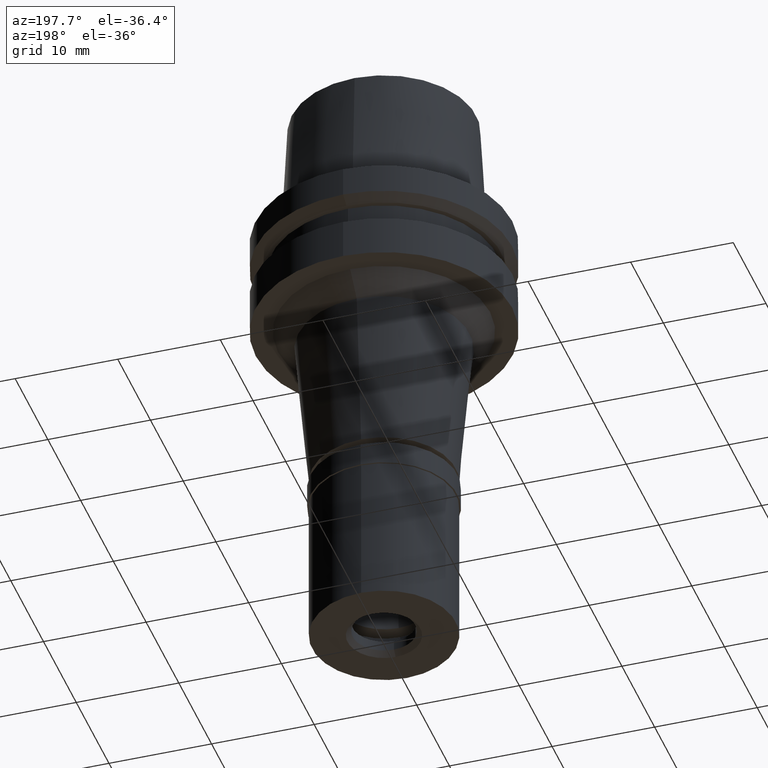
[diagram: clean part render]
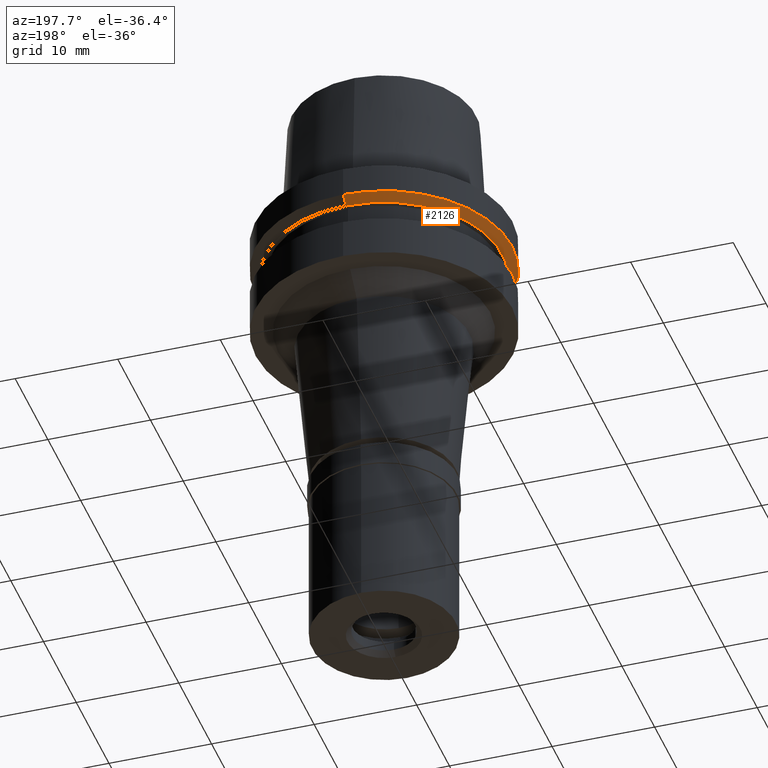
[diagram: same view with one face highlighted and labeled with its STEP entity id]
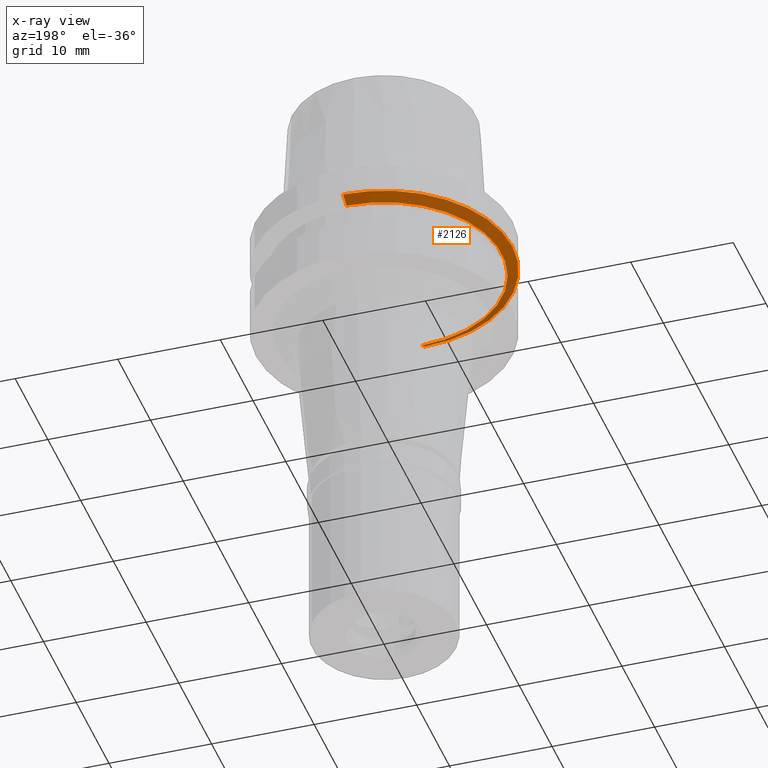
[diagram: x-ray of the same camera — body ghosted, the highlighted face saturated]
A machine part, auxiliary view. The second image highlights one B-rep face of the part: STEP entity #2126.
The next image is the same camera in x-ray: the body ghosted, the highlighted face saturated — about 16% of this face is hidden behind the body in this view.
In plain terms, the highlighted conical surface has half-angle 60 deg.
Its self-contained STEP definition (entity closure, byte-faithful):
#213 = CARTESIAN_POINT ( 'NONE',  ( 0.0000000000000000000, 12.50000000000000000, -2.912286759727999996 ) ) ;
#216 = FACE_OUTER_BOUND ( 'NONE', #2429, .T. ) ;
#496 = DIRECTION ( 'NONE',  ( 0.0000000000000000000, 0.8660254037846089048, -0.4999999999997049027 ) ) ;
#510 = LINE ( 'NONE', #890, #1507 ) ;
#516 = CARTESIAN_POINT ( 'NONE',  ( 0.0000000000000000000, 11.48205080757000118, -3.499999999997999822 ) ) ;
#575 = AXIS2_PLACEMENT_3D ( 'NONE', #1057, #2068, #621 ) ;
#621 = DIRECTION ( 'NONE',  ( 0.0000000000000000000, 1.000000000000000000, 0.0000000000000000000 ) ) ;
#808 = VERTEX_POINT ( 'NONE', #213 ) ;
#890 = CARTESIAN_POINT ( 'NONE',  ( 0.0000000000000000000, -12.50000000000000000, -2.912286759727999996 ) ) ;
#916 = ORIENTED_EDGE ( 'NONE', *, *, #1302, .F. ) ;
#1057 = CARTESIAN_POINT ( 'NONE',  ( 0.0000000000000000000, 0.0000000000000000000, -2.912286759726999907 ) ) ;
#1062 = DIRECTION ( 'NONE',  ( 0.0000000000000000000, 0.0000000000000000000, 1.000000000000000000 ) ) ;
#1112 = DIRECTION ( 'NONE',  ( 0.0000000000000000000, -0.8660254037846089048, -0.4999999999997049027 ) ) ;
#1149 = CONICAL_SURFACE ( 'NONE', #2531, 11.99102540378000192, 1.047197551196400456 ) ;
#1157 = VERTEX_POINT ( 'NONE', #516 ) ;
#1239 = ORIENTED_EDGE ( 'NONE', *, *, #1582, .F. ) ;
#1276 = CARTESIAN_POINT ( 'NONE',  ( 0.0000000000000000000, 0.0000000000000000000, -3.499999999997000177 ) ) ;
#1302 = EDGE_CURVE ( 'NONE', #808, #1518, #1306, .T. ) ;
#1306 = CIRCLE ( 'NONE', #575, 12.50000000000000000 ) ;
#1357 = AXIS2_PLACEMENT_3D ( 'NONE', #1276, #2096, #1893 ) ;
#1437 = EDGE_CURVE ( 'NONE', #808, #1157, #1542, .T. ) ;
#1484 = DIRECTION ( 'NONE',  ( 0.0000000000000000000, 1.000000000000000000, 0.0000000000000000000 ) ) ;
#1503 = VERTEX_POINT ( 'NONE', #1764 ) ;
#1507 = VECTOR ( 'NONE', #496, 1000.000000000000114 ) ;
#1518 = VERTEX_POINT ( 'NONE', #1718 ) ;
#1542 = LINE ( 'NONE', #2582, #2620 ) ;
#1582 = EDGE_CURVE ( 'NONE', #1518, #1503, #510, .T. ) ;
#1718 = CARTESIAN_POINT ( 'NONE',  ( 0.0000000000000000000, -12.50000000000000000, -2.912286759727999996 ) ) ;
#1764 = CARTESIAN_POINT ( 'NONE',  ( 0.0000000000000000000, -11.48205080757000118, -3.499999999997000177 ) ) ;
#1893 = DIRECTION ( 'NONE',  ( 0.0000000000000000000, 1.000000000000000000, 0.0000000000000000000 ) ) ;
#1899 = ORIENTED_EDGE ( 'NONE', *, *, #1437, .T. ) ;
#1965 = CIRCLE ( 'NONE', #1357, 11.48205080757000118 ) ;
#2068 = DIRECTION ( 'NONE',  ( 0.0000000000000000000, 0.0000000000000000000, 1.000000000000000000 ) ) ;
#2096 = DIRECTION ( 'NONE',  ( 0.0000000000000000000, 0.0000000000000000000, 1.000000000000000000 ) ) ;
#2126 = ADVANCED_FACE ( 'NONE', ( #216 ), #1149, .T. ) ;
#2140 = EDGE_CURVE ( 'NONE', #1157, #1503, #1965, .T. ) ;
#2307 = ORIENTED_EDGE ( 'NONE', *, *, #2140, .T. ) ;
#2429 = EDGE_LOOP ( 'NONE', ( #2307, #1239, #916, #1899 ) ) ;
#2531 = AXIS2_PLACEMENT_3D ( 'NONE', #2546, #1062, #1484 ) ;
#2546 = CARTESIAN_POINT ( 'NONE',  ( 0.0000000000000000000, 0.0000000000000000000, -3.206143379862000042 ) ) ;
#2582 = CARTESIAN_POINT ( 'NONE',  ( 0.0000000000000000000, 12.50000000000000000, -2.912286759727999996 ) ) ;
#2620 = VECTOR ( 'NONE', #1112, 1000.000000000000114 ) ;